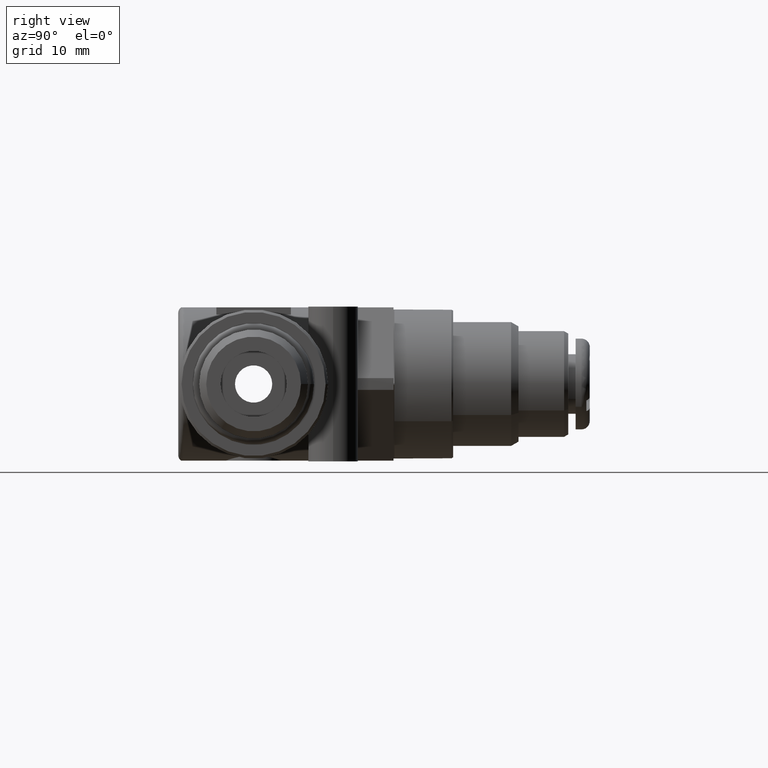
[diagram: clean part render]
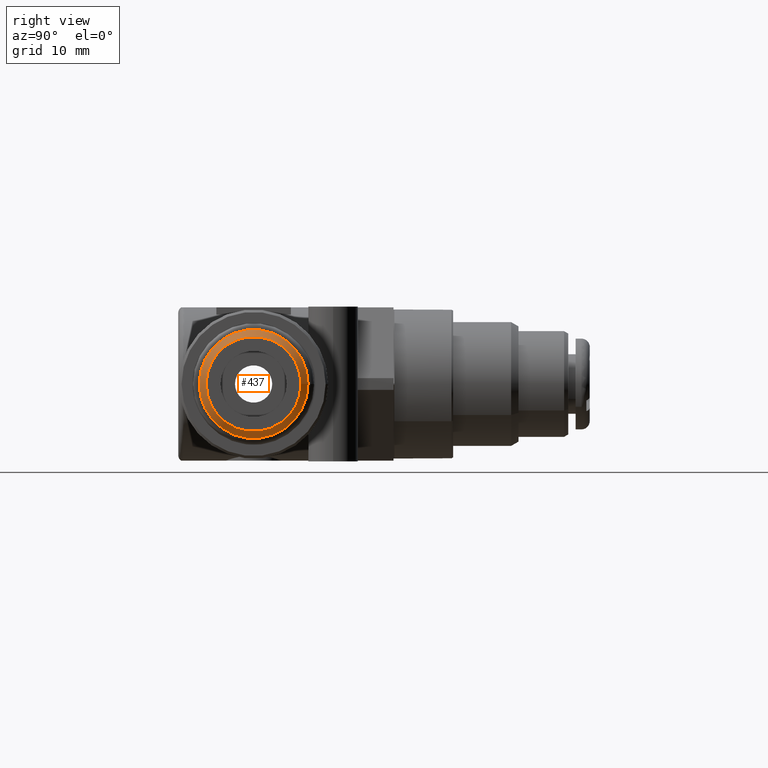
[diagram: same view with one face highlighted and labeled with its STEP entity id]
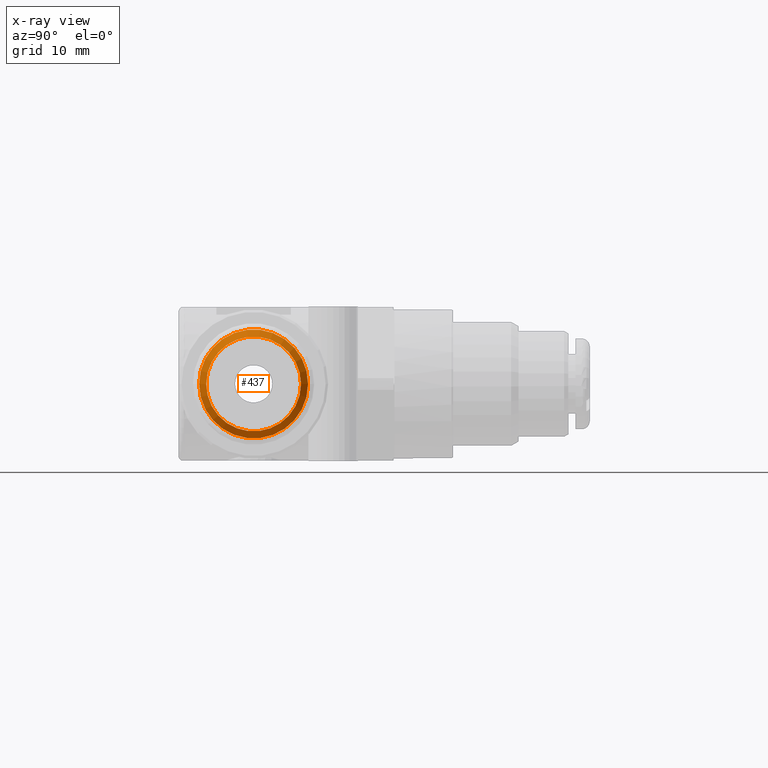
[diagram: x-ray of the same camera — body ghosted, the highlighted face saturated]
A machine part, right view. The second image highlights one B-rep face of the part: STEP entity #437.
The next image is the same camera in x-ray: the body ghosted, the highlighted face saturated — about 0% of this face is hidden behind the body in this view.
In plain terms, the highlighted conical surface has half-angle 30 deg.
Its self-contained STEP definition (entity closure, byte-faithful):
#437 = ADVANCED_FACE( '', ( #954, #955 ), #956, .T. );
#954 = FACE_BOUND( '', #1625, .T. );
#955 = FACE_OUTER_BOUND( '', #1626, .T. );
#956 = CONICAL_SURFACE( '', #1627, 6.57850000000000, 0.523598775598298 );
#1625 = EDGE_LOOP( '', ( #2552 ) );
#1626 = EDGE_LOOP( '', ( #2553 ) );
#1627 = AXIS2_PLACEMENT_3D( '', #2554, #2555, #2556 );
#2552 = ORIENTED_EDGE( '', *, *, #3813, .T. );
#2553 = ORIENTED_EDGE( '', *, *, #3814, .F. );
#2554 = CARTESIAN_POINT( '', ( -6.51736450872104, 0.000000000000000, 0.000000000000000 ) );
#2555 = DIRECTION( '', ( 1.00000000000000, -0.000000000000000, -0.000000000000000 ) );
#2556 = DIRECTION( '', ( -0.000000000000000, 0.000000000000000, -1.00000000000000 ) );
#3813 = EDGE_CURVE( '', #4547, #4547, #4548, .T. );
#3814 = EDGE_CURVE( '', #4549, #4549, #4550, .T. );
#4547 = VERTEX_POINT( '', #5547 );
#4548 = CIRCLE( '', #5548, 5.72250000000000 );
#4549 = VERTEX_POINT( '', #5549 );
#4550 = CIRCLE( '', #5550, 6.57850000000000 );
#5547 = CARTESIAN_POINT( '', ( -8.00000000000000, 0.000000000000000, -5.72250000000000 ) );
#5548 = AXIS2_PLACEMENT_3D( '', #7008, #7009, #7010 );
#5549 = CARTESIAN_POINT( '', ( -6.51736450872104, 0.000000000000000, -6.57850000000000 ) );
#5550 = AXIS2_PLACEMENT_3D( '', #7011, #7012, #7013 );
#7008 = CARTESIAN_POINT( '', ( -8.00000000000000, 0.000000000000000, 0.000000000000000 ) );
#7009 = DIRECTION( '', ( 1.00000000000000, 0.000000000000000, -0.000000000000000 ) );
#7010 = DIRECTION( '', ( -0.000000000000000, 0.000000000000000, -1.00000000000000 ) );
#7011 = CARTESIAN_POINT( '', ( -6.51736450872104, 0.000000000000000, 0.000000000000000 ) );
#7012 = DIRECTION( '', ( 1.00000000000000, 0.000000000000000, -0.000000000000000 ) );
#7013 = DIRECTION( '', ( -0.000000000000000, 0.000000000000000, -1.00000000000000 ) );